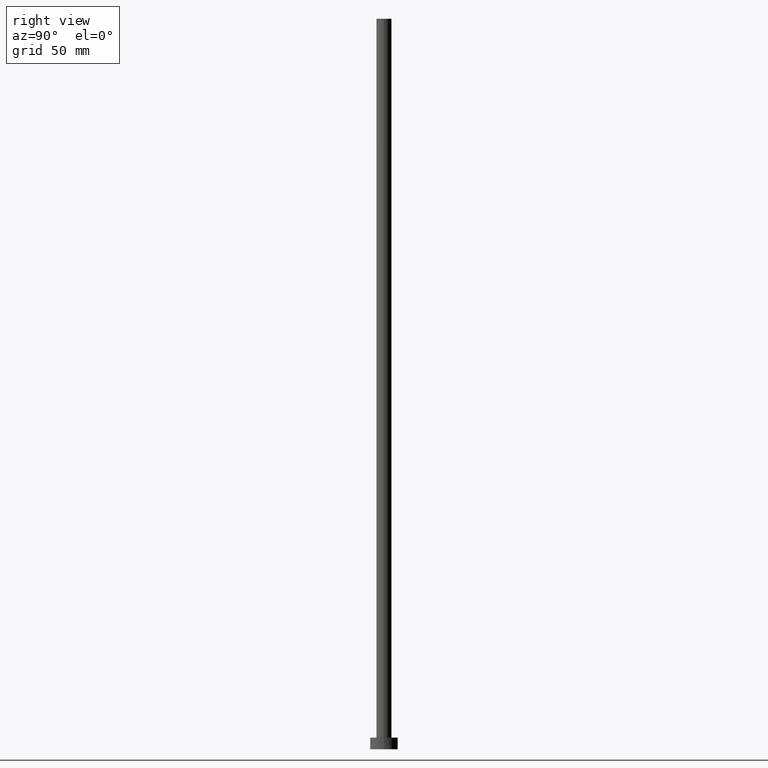
[diagram: clean part render]
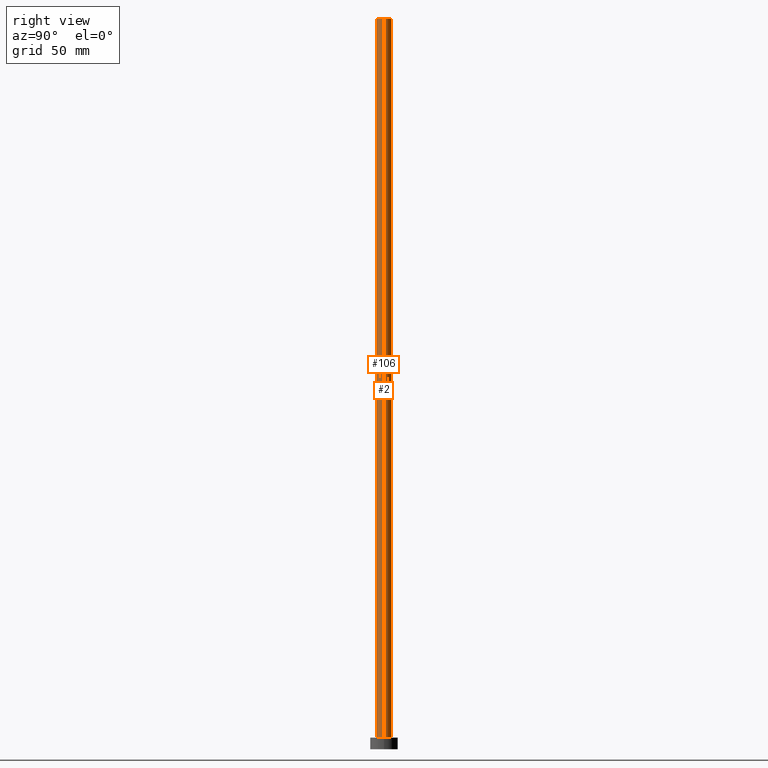
[diagram: same view with one multi-face feature highlighted, each face labeled with its STEP entity id]
A machine part, right view. The highlighted faces form ONE feature: a constant-radius fillet chain: 2 tangent blend faces with common blend radius 3.25 mm. The faces share edges in the B-rep.
Their STEP definitions:
[1] entity #106 (Cylinder):
#5 = CIRCLE ( 'NONE', #64, 3.250000000000000444 ) ;
#11 = VERTEX_POINT ( 'NONE', #159 ) ;
#17 = CARTESIAN_POINT ( 'NONE',  ( -3.250000000000000444, 0.000000000000000000, 315.0000000000000000 ) ) ;
#27 = AXIS2_PLACEMENT_3D ( 'NONE', #53, #232, #119 ) ;
#46 = LINE ( 'NONE', #236, #168 ) ;
#48 = CIRCLE ( 'NONE', #27, 3.250000000000000444 ) ;
#53 = CARTESIAN_POINT ( 'NONE',  ( 0.000000000000000000, 0.000000000000000000, 315.0000000000000000 ) ) ;
#56 = DIRECTION ( 'NONE',  ( 1.000000000000000000, 0.000000000000000000, 0.000000000000000000 ) ) ;
#58 = FACE_OUTER_BOUND ( 'NONE', #115, .T. ) ;
#59 = EDGE_CURVE ( 'NONE', #211, #11, #48, .T. ) ;
#64 = AXIS2_PLACEMENT_3D ( 'NONE', #76, #138, #56 ) ;
#73 = LINE ( 'NONE', #17, #198 ) ;
#76 = CARTESIAN_POINT ( 'NONE',  ( 0.000000000000000000, 0.000000000000000000, 5.000000000000000000 ) ) ;
#79 = EDGE_CURVE ( 'NONE', #211, #244, #73, .T. ) ;
#92 = DIRECTION ( 'NONE',  ( -0.000000000000000000, -0.000000000000000000, -1.000000000000000000 ) ) ;
#93 = DIRECTION ( 'NONE',  ( -0.000000000000000000, -0.000000000000000000, -1.000000000000000000 ) ) ;
#96 = DIRECTION ( 'NONE',  ( -1.000000000000000000, 0.000000000000000000, 0.000000000000000000 ) ) ;
#101 = CARTESIAN_POINT ( 'NONE',  ( -3.250000000000000444, 0.000000000000000000, 5.000000000000000000 ) ) ;
#106 = ADVANCED_FACE ( 'NONE', ( #58 ), #212, .T. ) ;
#115 = EDGE_LOOP ( 'NONE', ( #153, #247, #135, #172 ) ) ;
#119 = DIRECTION ( 'NONE',  ( 1.000000000000000000, 0.000000000000000000, 0.000000000000000000 ) ) ;
#135 = ORIENTED_EDGE ( 'NONE', *, *, #79, .T. ) ;
#138 = DIRECTION ( 'NONE',  ( 0.000000000000000000, 0.000000000000000000, 1.000000000000000000 ) ) ;
#148 = DIRECTION ( 'NONE',  ( -0.000000000000000000, -0.000000000000000000, -1.000000000000000000 ) ) ;
#153 = ORIENTED_EDGE ( 'NONE', *, *, #220, .F. ) ;
#154 = EDGE_CURVE ( 'NONE', #244, #230, #5, .T. ) ;
#159 = CARTESIAN_POINT ( 'NONE',  ( 3.250000000000000444, 3.980102097228898231E-16, 315.0000000000000000 ) ) ;
#168 = VECTOR ( 'NONE', #148, 1000.000000000000000 ) ;
#172 = ORIENTED_EDGE ( 'NONE', *, *, #154, .T. ) ;
#198 = VECTOR ( 'NONE', #93, 1000.000000000000000 ) ;
#211 = VERTEX_POINT ( 'NONE', #254 ) ;
#212 = CYLINDRICAL_SURFACE ( 'NONE', #250, 3.250000000000000444 ) ;
#220 = EDGE_CURVE ( 'NONE', #11, #230, #46, .T. ) ;
#230 = VERTEX_POINT ( 'NONE', #240 ) ;
#232 = DIRECTION ( 'NONE',  ( 0.000000000000000000, 0.000000000000000000, 1.000000000000000000 ) ) ;
#234 = CARTESIAN_POINT ( 'NONE',  ( 0.000000000000000000, 0.000000000000000000, 315.0000000000000000 ) ) ;
#236 = CARTESIAN_POINT ( 'NONE',  ( 3.250000000000000444, 3.980102097228898231E-16, 315.0000000000000000 ) ) ;
#240 = CARTESIAN_POINT ( 'NONE',  ( 3.250000000000000444, 3.980102097228898231E-16, 5.000000000000000000 ) ) ;
#244 = VERTEX_POINT ( 'NONE', #101 ) ;
#247 = ORIENTED_EDGE ( 'NONE', *, *, #59, .F. ) ;
#250 = AXIS2_PLACEMENT_3D ( 'NONE', #234, #92, #96 ) ;
#254 = CARTESIAN_POINT ( 'NONE',  ( -3.250000000000000444, 0.000000000000000000, 315.0000000000000000 ) ) ;
[2] entity #2 (Cylinder):
#2 = ADVANCED_FACE ( 'NONE', ( #175 ), #36, .T. ) ;
#10 = ORIENTED_EDGE ( 'NONE', *, *, #229, .F. ) ;
#11 = VERTEX_POINT ( 'NONE', #159 ) ;
#17 = CARTESIAN_POINT ( 'NONE',  ( -3.250000000000000444, 0.000000000000000000, 315.0000000000000000 ) ) ;
#20 = DIRECTION ( 'NONE',  ( 0.000000000000000000, 0.000000000000000000, 1.000000000000000000 ) ) ;
#25 = ORIENTED_EDGE ( 'NONE', *, *, #165, .T. ) ;
#35 = CARTESIAN_POINT ( 'NONE',  ( 0.000000000000000000, 0.000000000000000000, 315.0000000000000000 ) ) ;
#36 = CYLINDRICAL_SURFACE ( 'NONE', #102, 3.250000000000000444 ) ;
#44 = AXIS2_PLACEMENT_3D ( 'NONE', #140, #215, #218 ) ;
#46 = LINE ( 'NONE', #236, #168 ) ;
#73 = LINE ( 'NONE', #17, #198 ) ;
#79 = EDGE_CURVE ( 'NONE', #211, #244, #73, .T. ) ;
#93 = DIRECTION ( 'NONE',  ( -0.000000000000000000, -0.000000000000000000, -1.000000000000000000 ) ) ;
#98 = CIRCLE ( 'NONE', #186, 3.250000000000000444 ) ;
#101 = CARTESIAN_POINT ( 'NONE',  ( -3.250000000000000444, 0.000000000000000000, 5.000000000000000000 ) ) ;
#102 = AXIS2_PLACEMENT_3D ( 'NONE', #35, #252, #180 ) ;
#112 = ORIENTED_EDGE ( 'NONE', *, *, #79, .F. ) ;
#140 = CARTESIAN_POINT ( 'NONE',  ( 0.000000000000000000, 0.000000000000000000, 5.000000000000000000 ) ) ;
#148 = DIRECTION ( 'NONE',  ( -0.000000000000000000, -0.000000000000000000, -1.000000000000000000 ) ) ;
#149 = CIRCLE ( 'NONE', #44, 3.250000000000000444 ) ;
#152 = ORIENTED_EDGE ( 'NONE', *, *, #220, .T. ) ;
#159 = CARTESIAN_POINT ( 'NONE',  ( 3.250000000000000444, 3.980102097228898231E-16, 315.0000000000000000 ) ) ;
#165 = EDGE_CURVE ( 'NONE', #230, #244, #149, .T. ) ;
#168 = VECTOR ( 'NONE', #148, 1000.000000000000000 ) ;
#170 = DIRECTION ( 'NONE',  ( 1.000000000000000000, 0.000000000000000000, 0.000000000000000000 ) ) ;
#175 = FACE_OUTER_BOUND ( 'NONE', #188, .T. ) ;
#180 = DIRECTION ( 'NONE',  ( -1.000000000000000000, 0.000000000000000000, 0.000000000000000000 ) ) ;
#186 = AXIS2_PLACEMENT_3D ( 'NONE', #204, #20, #170 ) ;
#188 = EDGE_LOOP ( 'NONE', ( #10, #152, #25, #112 ) ) ;
#198 = VECTOR ( 'NONE', #93, 1000.000000000000000 ) ;
#204 = CARTESIAN_POINT ( 'NONE',  ( 0.000000000000000000, 0.000000000000000000, 315.0000000000000000 ) ) ;
#211 = VERTEX_POINT ( 'NONE', #254 ) ;
#215 = DIRECTION ( 'NONE',  ( 0.000000000000000000, 0.000000000000000000, 1.000000000000000000 ) ) ;
#218 = DIRECTION ( 'NONE',  ( 1.000000000000000000, 0.000000000000000000, 0.000000000000000000 ) ) ;
#220 = EDGE_CURVE ( 'NONE', #11, #230, #46, .T. ) ;
#229 = EDGE_CURVE ( 'NONE', #11, #211, #98, .T. ) ;
#230 = VERTEX_POINT ( 'NONE', #240 ) ;
#236 = CARTESIAN_POINT ( 'NONE',  ( 3.250000000000000444, 3.980102097228898231E-16, 315.0000000000000000 ) ) ;
#240 = CARTESIAN_POINT ( 'NONE',  ( 3.250000000000000444, 3.980102097228898231E-16, 5.000000000000000000 ) ) ;
#244 = VERTEX_POINT ( 'NONE', #101 ) ;
#252 = DIRECTION ( 'NONE',  ( -0.000000000000000000, -0.000000000000000000, -1.000000000000000000 ) ) ;
#254 = CARTESIAN_POINT ( 'NONE',  ( -3.250000000000000444, 0.000000000000000000, 315.0000000000000000 ) ) ;